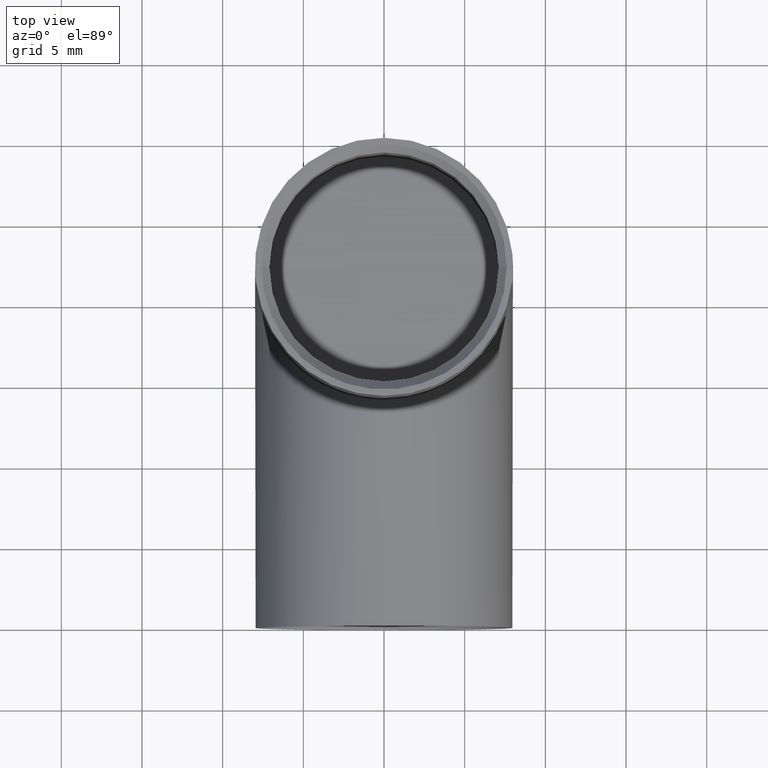
[diagram: clean part render]
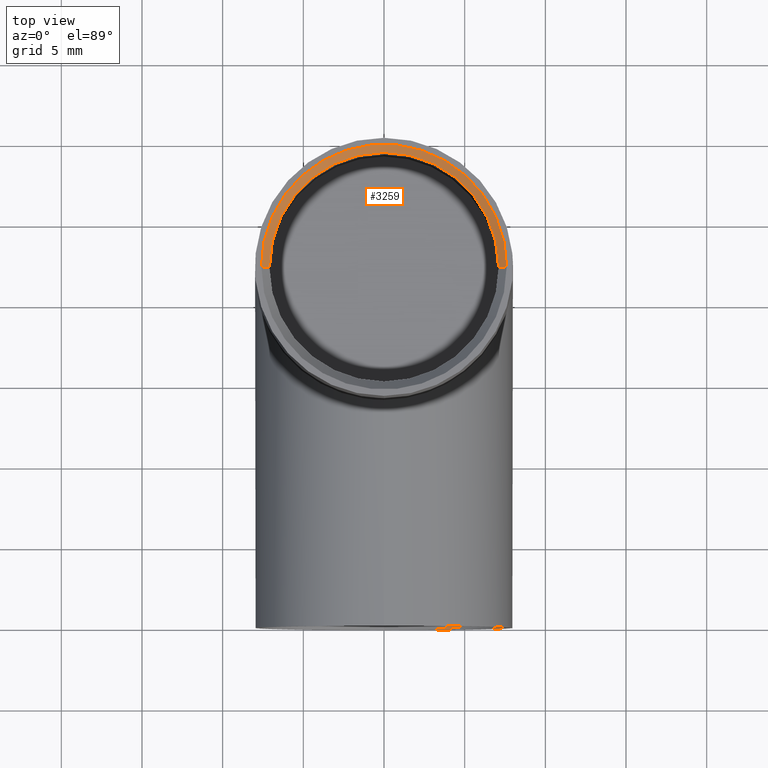
[diagram: same view with one face highlighted and labeled with its STEP entity id]
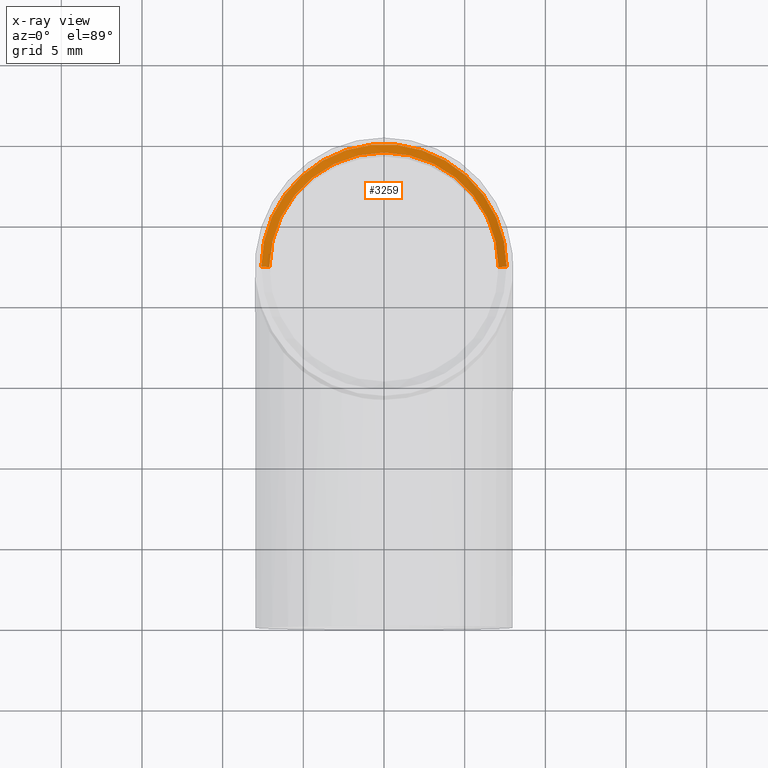
[diagram: x-ray of the same camera — body ghosted, the highlighted face saturated]
A machine part, top view. The second image highlights one B-rep face of the part: STEP entity #3259.
The next image is the same camera in x-ray: the body ghosted, the highlighted face saturated — about 0% of this face is hidden behind the body in this view.
In plain terms, the highlighted conical surface has half-angle 45 deg.
Its self-contained STEP definition (entity closure, byte-faithful):
#258 = CARTESIAN_POINT ( 'NONE',  ( 0.000000000000000000, 21.99999999999998579, 21.99999999999999645 ) ) ;
#325 = CARTESIAN_POINT ( 'NONE',  ( 0.000000000000000000, 21.99999999999998579, 21.49999999999999289 ) ) ;
#423 = EDGE_CURVE ( 'NONE', #5646, #1701, #9940, .T. ) ;
#676 = ORIENTED_EDGE ( 'NONE', *, *, #11976, .F. ) ;
#821 = DIRECTION ( 'NONE',  ( -0.000000000000000000, -0.000000000000000000, 1.000000000000000000 ) ) ;
#901 = CIRCLE ( 'NONE', #6589, 7.099999999999999645 ) ;
#912 = LINE ( 'NONE', #5164, #12252 ) ;
#1143 = LINE ( 'NONE', #9535, #10988 ) ;
#1701 = VERTEX_POINT ( 'NONE', #4267 ) ;
#2293 = CARTESIAN_POINT ( 'NONE',  ( -7.099999999999999645, 21.99999999999998579, 21.49999999999999289 ) ) ;
#2653 = VERTEX_POINT ( 'NONE', #9345 ) ;
#2694 = DIRECTION ( 'NONE',  ( 1.000000000000000000, 0.000000000000000000, 0.000000000000000000 ) ) ;
#2816 = VERTEX_POINT ( 'NONE', #2293 ) ;
#3259 = ADVANCED_FACE ( 'NONE', ( #9604 ), #4255, .F. ) ;
#3645 = CARTESIAN_POINT ( 'NONE',  ( 0.000000000000000000, 21.99999999999998579, 21.49999999999999289 ) ) ;
#4128 = VERTEX_POINT ( 'NONE', #11970 ) ;
#4194 = DIRECTION ( 'NONE',  ( 0.7071067811865493491, 0.000000000000000000, 0.7071067811865456854 ) ) ;
#4255 = CONICAL_SURFACE ( 'NONE', #9170, 7.600000000000005862, 0.7853981633974509435 ) ;
#4267 = CARTESIAN_POINT ( 'NONE',  ( 7.600000000000005862, 21.99999999999998579, 21.99999999999999645 ) ) ;
#4545 = DIRECTION ( 'NONE',  ( -0.000000000000000000, -0.000000000000000000, 1.000000000000000000 ) ) ;
#5164 = CARTESIAN_POINT ( 'NONE',  ( 7.600000000000005862, 21.99999999999998579, 21.99999999999999645 ) ) ;
#5646 = VERTEX_POINT ( 'NONE', #7361 ) ;
#6110 = DIRECTION ( 'NONE',  ( 0.000000000000000000, -1.000000000000000000, -4.565061778886329113E-16 ) ) ;
#6589 = AXIS2_PLACEMENT_3D ( 'NONE', #325, #9028, #8913 ) ;
#6777 = AXIS2_PLACEMENT_3D ( 'NONE', #3645, #4545, #12249 ) ;
#6974 = EDGE_LOOP ( 'NONE', ( #676, #11141, #7866, #9931, #11762 ) ) ;
#7067 = EDGE_CURVE ( 'NONE', #4128, #1701, #912, .T. ) ;
#7361 = CARTESIAN_POINT ( 'NONE',  ( -7.600000000000005862, 21.99999999999998579, 21.99999999999999645 ) ) ;
#7598 = EDGE_CURVE ( 'NONE', #4128, #2653, #901, .T. ) ;
#7866 = ORIENTED_EDGE ( 'NONE', *, *, #7598, .F. ) ;
#8364 = CARTESIAN_POINT ( 'NONE',  ( 0.000000000000000000, 21.99999999999998579, 21.99999999999999645 ) ) ;
#8913 = DIRECTION ( 'NONE',  ( 1.000000000000000000, 0.000000000000000000, 0.000000000000000000 ) ) ;
#9028 = DIRECTION ( 'NONE',  ( -0.000000000000000000, -0.000000000000000000, 1.000000000000000000 ) ) ;
#9170 = AXIS2_PLACEMENT_3D ( 'NONE', #8364, #821, #2694 ) ;
#9345 = CARTESIAN_POINT ( 'NONE',  ( 8.694992273946209718E-16, 29.09999999999998721, 21.49999999999999289 ) ) ;
#9535 = CARTESIAN_POINT ( 'NONE',  ( -7.600000000000005862, 21.99999999999998579, 21.99999999999999645 ) ) ;
#9604 = FACE_OUTER_BOUND ( 'NONE', #6974, .T. ) ;
#9931 = ORIENTED_EDGE ( 'NONE', *, *, #7067, .T. ) ;
#9940 = CIRCLE ( 'NONE', #10457, 7.600000000000009415 ) ;
#10457 = AXIS2_PLACEMENT_3D ( 'NONE', #258, #10898, #6110 ) ;
#10546 = CIRCLE ( 'NONE', #6777, 7.099999999999999645 ) ;
#10898 = DIRECTION ( 'NONE',  ( -0.000000000000000000, 3.154042683594195614E-16, -1.000000000000000000 ) ) ;
#10988 = VECTOR ( 'NONE', #12376, 1000.000000000000000 ) ;
#11087 = EDGE_CURVE ( 'NONE', #2653, #2816, #10546, .T. ) ;
#11141 = ORIENTED_EDGE ( 'NONE', *, *, #11087, .F. ) ;
#11762 = ORIENTED_EDGE ( 'NONE', *, *, #423, .F. ) ;
#11970 = CARTESIAN_POINT ( 'NONE',  ( 7.099999999999999645, 21.99999999999998579, 21.49999999999999289 ) ) ;
#11976 = EDGE_CURVE ( 'NONE', #2816, #5646, #1143, .T. ) ;
#12249 = DIRECTION ( 'NONE',  ( 1.000000000000000000, 0.000000000000000000, 0.000000000000000000 ) ) ;
#12252 = VECTOR ( 'NONE', #4194, 1000.000000000000000 ) ;
#12376 = DIRECTION ( 'NONE',  ( -0.7071067811865493491, 8.659560562354955045E-17, 0.7071067811865456854 ) ) ;